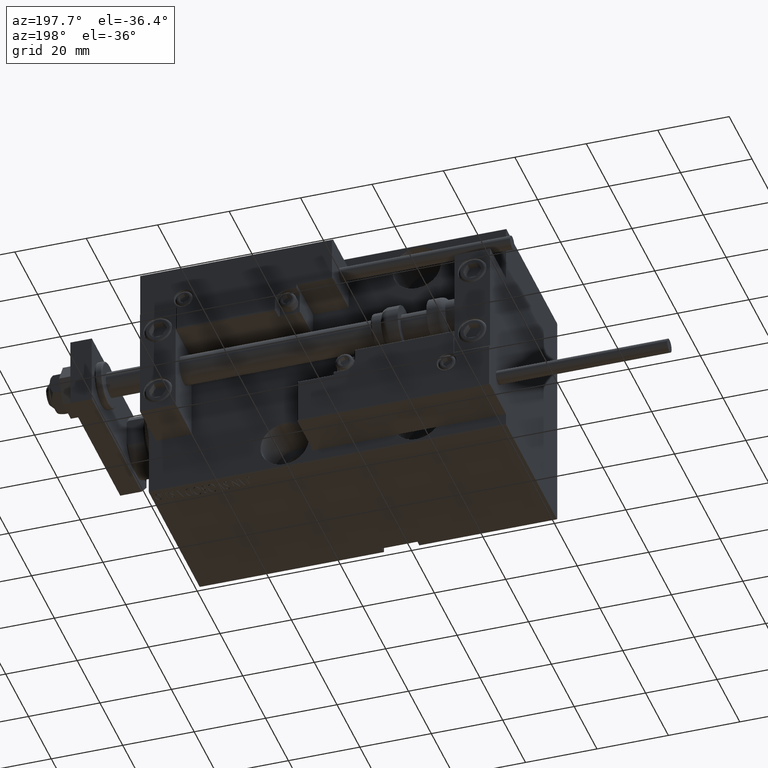
[diagram: clean part render]
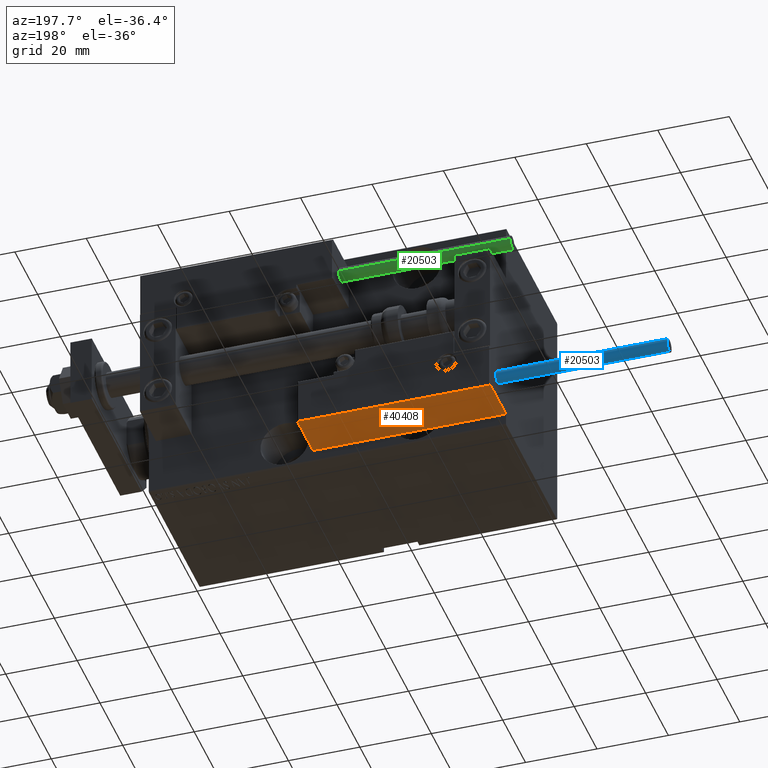
[diagram: same view with three faces highlighted in distinct colors, each labeled with its STEP entity id]
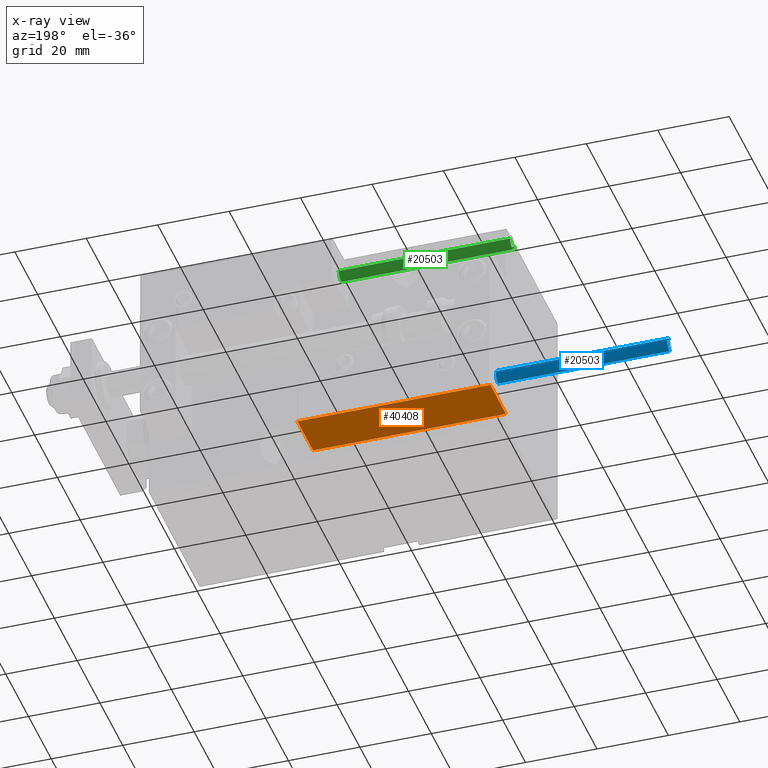
[diagram: x-ray of the same camera — body ghosted, the three highlighted faces saturated]
A machine part, auxiliary view with three faces highlighted in distinct colors.
The next image is the same camera in x-ray (body ghosted, the three faces saturated) — at least one of them is partly hidden behind the body in this view.
Their STEP definitions:

[orange] entity #40408 — the highlighted planar face has unit normal (-0, -0, 1).
#336 = DIRECTION ( 'NONE',  ( -0.000000000000000000, -0.000000000000000000, -1.000000000000000000 ) ) ;
#1273 = VERTEX_POINT ( 'NONE', #37904 ) ;
#2730 = EDGE_CURVE ( 'NONE', #31017, #44526, #21418, .T. ) ;
#7434 = DIRECTION ( 'NONE',  ( -6.424901762877063495E-17, -1.000000000000000000, 0.000000000000000000 ) ) ;
#7927 = PLANE ( 'NONE',  #41651 ) ;
#9328 = CARTESIAN_POINT ( 'NONE',  ( 27.00000000000006395, 20.00000000000001776, 13.70000000000000107 ) ) ;
#9966 = EDGE_CURVE ( 'NONE', #31017, #1273, #25650, .T. ) ;
#14714 = VERTEX_POINT ( 'NONE', #39598 ) ;
#15735 = FACE_OUTER_BOUND ( 'NONE', #17799, .T. ) ;
#17799 = EDGE_LOOP ( 'NONE', ( #18199, #31884, #29498, #42888 ) ) ;
#18199 = ORIENTED_EDGE ( 'NONE', *, *, #9966, .F. ) ;
#20332 = VECTOR ( 'NONE', #22251, 1000.000000000000000 ) ;
#21418 = LINE ( 'NONE', #9328, #33784 ) ;
#22251 = DIRECTION ( 'NONE',  ( -0.000000000000000000, -0.000000000000000000, -1.000000000000000000 ) ) ;
#25442 = LINE ( 'NONE', #29721, #28162 ) ;
#25650 = LINE ( 'NONE', #48862, #27098 ) ;
#26023 = CARTESIAN_POINT ( 'NONE',  ( 27.00000000000006395, 20.00000000000001776, 14.00000000000000000 ) ) ;
#26067 = EDGE_CURVE ( 'NONE', #44526, #14714, #29810, .T. ) ;
#27098 = VECTOR ( 'NONE', #336, 1000.000000000000000 ) ;
#28162 = VECTOR ( 'NONE', #44875, 1000.000000000000000 ) ;
#29498 = ORIENTED_EDGE ( 'NONE', *, *, #26067, .T. ) ;
#29721 = CARTESIAN_POINT ( 'NONE',  ( 27.00000000000006395, 20.00000000000001776, 0.000000000000000000 ) ) ;
#29810 = LINE ( 'NONE', #26023, #20332 ) ;
#31017 = VERTEX_POINT ( 'NONE', #45861 ) ;
#31884 = ORIENTED_EDGE ( 'NONE', *, *, #2730, .T. ) ;
#33784 = VECTOR ( 'NONE', #40599, 1000.000000000000000 ) ;
#37904 = CARTESIAN_POINT ( 'NONE',  ( -26.99999999999993605, 20.00000000000002132, 0.000000000000000000 ) ) ;
#38710 = DIRECTION ( 'NONE',  ( 1.000000000000000000, -6.424901762877063495E-17, 0.000000000000000000 ) ) ;
#39598 = CARTESIAN_POINT ( 'NONE',  ( 27.00000000000006395, 20.00000000000001776, 0.000000000000000000 ) ) ;
#40408 = ADVANCED_FACE ( 'NONE', ( #15735 ), #7927, .F. ) ;
#40599 = DIRECTION ( 'NONE',  ( 1.000000000000000000, -6.424901762877063495E-17, -0.000000000000000000 ) ) ;
#41651 = AXIS2_PLACEMENT_3D ( 'NONE', #46765, #7434, #38710 ) ;
#42888 = ORIENTED_EDGE ( 'NONE', *, *, #47067, .T. ) ;
#44526 = VERTEX_POINT ( 'NONE', #48994 ) ;
#44875 = DIRECTION ( 'NONE',  ( -1.000000000000000000, 6.424901762877062263E-17, 0.000000000000000000 ) ) ;
#45861 = CARTESIAN_POINT ( 'NONE',  ( -26.99999999999993605, 20.00000000000002132, 13.70000000000000107 ) ) ;
#46765 = CARTESIAN_POINT ( 'NONE',  ( 27.00000000000006395, 20.00000000000001776, 14.00000000000000000 ) ) ;
#47067 = EDGE_CURVE ( 'NONE', #14714, #1273, #25442, .T. ) ;
#48862 = CARTESIAN_POINT ( 'NONE',  ( -26.99999999999993605, 20.00000000000002132, 14.00000000000000000 ) ) ;
#48994 = CARTESIAN_POINT ( 'NONE',  ( 27.00000000000006395, 20.00000000000001776, 13.70000000000000107 ) ) ;

[blue] entity #20503 — the highlighted cylindrical surface (edge-blend (fillet) strip) has radius 1.9 mm, axis along (1, -0, 0).
#572 = EDGE_LOOP ( 'NONE', ( #16109, #3166, #21810, #47803 ) ) ;
#832 = VERTEX_POINT ( 'NONE', #45519 ) ;
#2172 = CARTESIAN_POINT ( 'NONE',  ( 0.000000000000000000, 0.000000000000000000, 0.000000000000000000 ) ) ;
#2376 = DIRECTION ( 'NONE',  ( 0.000000000000000000, 0.000000000000000000, 1.000000000000000000 ) ) ;
#2668 = CYLINDRICAL_SURFACE ( 'NONE', #20136, 1.899999999999999467 ) ;
#3166 = ORIENTED_EDGE ( 'NONE', *, *, #17382, .T. ) ;
#3491 = CARTESIAN_POINT ( 'NONE',  ( 1.899999999999999467, 2.326828918379970872E-16, 48.00000000000000000 ) ) ;
#4049 = EDGE_CURVE ( 'NONE', #7916, #45950, #44018, .T. ) ;
#6702 = FACE_OUTER_BOUND ( 'NONE', #572, .T. ) ;
#7145 = CARTESIAN_POINT ( 'NONE',  ( 0.000000000000000000, 0.000000000000000000, 48.00000000000000000 ) ) ;
#7246 = AXIS2_PLACEMENT_3D ( 'NONE', #2172, #17550, #21585 ) ;
#7916 = VERTEX_POINT ( 'NONE', #35941 ) ;
#12876 = EDGE_CURVE ( 'NONE', #48000, #7916, #31987, .T. ) ;
#15580 = DIRECTION ( 'NONE',  ( -0.000000000000000000, -0.000000000000000000, -1.000000000000000000 ) ) ;
#16109 = ORIENTED_EDGE ( 'NONE', *, *, #12876, .F. ) ;
#16908 = CIRCLE ( 'NONE', #7246, 1.899999999999999467 ) ;
#16968 = VECTOR ( 'NONE', #43772, 1000.000000000000000 ) ;
#17382 = EDGE_CURVE ( 'NONE', #48000, #832, #42087, .T. ) ;
#17550 = DIRECTION ( 'NONE',  ( 0.000000000000000000, 0.000000000000000000, 1.000000000000000000 ) ) ;
#18049 = DIRECTION ( 'NONE',  ( -0.000000000000000000, -0.000000000000000000, -1.000000000000000000 ) ) ;
#20136 = AXIS2_PLACEMENT_3D ( 'NONE', #21331, #18049, #22073 ) ;
#20493 = EDGE_CURVE ( 'NONE', #832, #45950, #16908, .T. ) ;
#20503 = ADVANCED_FACE ( 'NONE', ( #6702 ), #2668, .T. ) ;
#21331 = CARTESIAN_POINT ( 'NONE',  ( 0.000000000000000000, 0.000000000000000000, 48.00000000000000000 ) ) ;
#21585 = DIRECTION ( 'NONE',  ( 1.000000000000000000, 0.000000000000000000, 0.000000000000000000 ) ) ;
#21810 = ORIENTED_EDGE ( 'NONE', *, *, #20493, .T. ) ;
#22073 = DIRECTION ( 'NONE',  ( -1.000000000000000000, 0.000000000000000000, 0.000000000000000000 ) ) ;
#31987 = CIRCLE ( 'NONE', #48073, 1.899999999999999467 ) ;
#33134 = DIRECTION ( 'NONE',  ( 1.000000000000000000, 0.000000000000000000, 0.000000000000000000 ) ) ;
#35941 = CARTESIAN_POINT ( 'NONE',  ( -1.899999999999999467, 0.000000000000000000, 48.00000000000000000 ) ) ;
#37360 = CARTESIAN_POINT ( 'NONE',  ( -1.899999999999999467, 0.000000000000000000, 0.000000000000000000 ) ) ;
#39342 = VECTOR ( 'NONE', #15580, 1000.000000000000000 ) ;
#42087 = LINE ( 'NONE', #3491, #39342 ) ;
#43772 = DIRECTION ( 'NONE',  ( -0.000000000000000000, -0.000000000000000000, -1.000000000000000000 ) ) ;
#44018 = LINE ( 'NONE', #47547, #16968 ) ;
#45519 = CARTESIAN_POINT ( 'NONE',  ( 1.899999999999999467, 2.326828918379970872E-16, 0.000000000000000000 ) ) ;
#45583 = CARTESIAN_POINT ( 'NONE',  ( 1.899999999999999467, 2.326828918379970872E-16, 48.00000000000000000 ) ) ;
#45950 = VERTEX_POINT ( 'NONE', #37360 ) ;
#47547 = CARTESIAN_POINT ( 'NONE',  ( -1.899999999999999467, 0.000000000000000000, 48.00000000000000000 ) ) ;
#47803 = ORIENTED_EDGE ( 'NONE', *, *, #4049, .F. ) ;
#48000 = VERTEX_POINT ( 'NONE', #45583 ) ;
#48073 = AXIS2_PLACEMENT_3D ( 'NONE', #7145, #2376, #33134 ) ;

[green] entity #20503 — the highlighted cylindrical surface (edge-blend (fillet) strip) has radius 1.9 mm, axis along (1, 0, -0).
#572 = EDGE_LOOP ( 'NONE', ( #16109, #3166, #21810, #47803 ) ) ;
#832 = VERTEX_POINT ( 'NONE', #45519 ) ;
#2172 = CARTESIAN_POINT ( 'NONE',  ( 0.000000000000000000, 0.000000000000000000, 0.000000000000000000 ) ) ;
#2376 = DIRECTION ( 'NONE',  ( 0.000000000000000000, 0.000000000000000000, 1.000000000000000000 ) ) ;
#2668 = CYLINDRICAL_SURFACE ( 'NONE', #20136, 1.899999999999999467 ) ;
#3166 = ORIENTED_EDGE ( 'NONE', *, *, #17382, .T. ) ;
#3491 = CARTESIAN_POINT ( 'NONE',  ( 1.899999999999999467, 2.326828918379970872E-16, 48.00000000000000000 ) ) ;
#4049 = EDGE_CURVE ( 'NONE', #7916, #45950, #44018, .T. ) ;
#6702 = FACE_OUTER_BOUND ( 'NONE', #572, .T. ) ;
#7145 = CARTESIAN_POINT ( 'NONE',  ( 0.000000000000000000, 0.000000000000000000, 48.00000000000000000 ) ) ;
#7246 = AXIS2_PLACEMENT_3D ( 'NONE', #2172, #17550, #21585 ) ;
#7916 = VERTEX_POINT ( 'NONE', #35941 ) ;
#12876 = EDGE_CURVE ( 'NONE', #48000, #7916, #31987, .T. ) ;
#15580 = DIRECTION ( 'NONE',  ( -0.000000000000000000, -0.000000000000000000, -1.000000000000000000 ) ) ;
#16109 = ORIENTED_EDGE ( 'NONE', *, *, #12876, .F. ) ;
#16908 = CIRCLE ( 'NONE', #7246, 1.899999999999999467 ) ;
#16968 = VECTOR ( 'NONE', #43772, 1000.000000000000000 ) ;
#17382 = EDGE_CURVE ( 'NONE', #48000, #832, #42087, .T. ) ;
#17550 = DIRECTION ( 'NONE',  ( 0.000000000000000000, 0.000000000000000000, 1.000000000000000000 ) ) ;
#18049 = DIRECTION ( 'NONE',  ( -0.000000000000000000, -0.000000000000000000, -1.000000000000000000 ) ) ;
#20136 = AXIS2_PLACEMENT_3D ( 'NONE', #21331, #18049, #22073 ) ;
#20493 = EDGE_CURVE ( 'NONE', #832, #45950, #16908, .T. ) ;
#20503 = ADVANCED_FACE ( 'NONE', ( #6702 ), #2668, .T. ) ;
#21331 = CARTESIAN_POINT ( 'NONE',  ( 0.000000000000000000, 0.000000000000000000, 48.00000000000000000 ) ) ;
#21585 = DIRECTION ( 'NONE',  ( 1.000000000000000000, 0.000000000000000000, 0.000000000000000000 ) ) ;
#21810 = ORIENTED_EDGE ( 'NONE', *, *, #20493, .T. ) ;
#22073 = DIRECTION ( 'NONE',  ( -1.000000000000000000, 0.000000000000000000, 0.000000000000000000 ) ) ;
#31987 = CIRCLE ( 'NONE', #48073, 1.899999999999999467 ) ;
#33134 = DIRECTION ( 'NONE',  ( 1.000000000000000000, 0.000000000000000000, 0.000000000000000000 ) ) ;
#35941 = CARTESIAN_POINT ( 'NONE',  ( -1.899999999999999467, 0.000000000000000000, 48.00000000000000000 ) ) ;
#37360 = CARTESIAN_POINT ( 'NONE',  ( -1.899999999999999467, 0.000000000000000000, 0.000000000000000000 ) ) ;
#39342 = VECTOR ( 'NONE', #15580, 1000.000000000000000 ) ;
#42087 = LINE ( 'NONE', #3491, #39342 ) ;
#43772 = DIRECTION ( 'NONE',  ( -0.000000000000000000, -0.000000000000000000, -1.000000000000000000 ) ) ;
#44018 = LINE ( 'NONE', #47547, #16968 ) ;
#45519 = CARTESIAN_POINT ( 'NONE',  ( 1.899999999999999467, 2.326828918379970872E-16, 0.000000000000000000 ) ) ;
#45583 = CARTESIAN_POINT ( 'NONE',  ( 1.899999999999999467, 2.326828918379970872E-16, 48.00000000000000000 ) ) ;
#45950 = VERTEX_POINT ( 'NONE', #37360 ) ;
#47547 = CARTESIAN_POINT ( 'NONE',  ( -1.899999999999999467, 0.000000000000000000, 48.00000000000000000 ) ) ;
#47803 = ORIENTED_EDGE ( 'NONE', *, *, #4049, .F. ) ;
#48000 = VERTEX_POINT ( 'NONE', #45583 ) ;
#48073 = AXIS2_PLACEMENT_3D ( 'NONE', #7145, #2376, #33134 ) ;